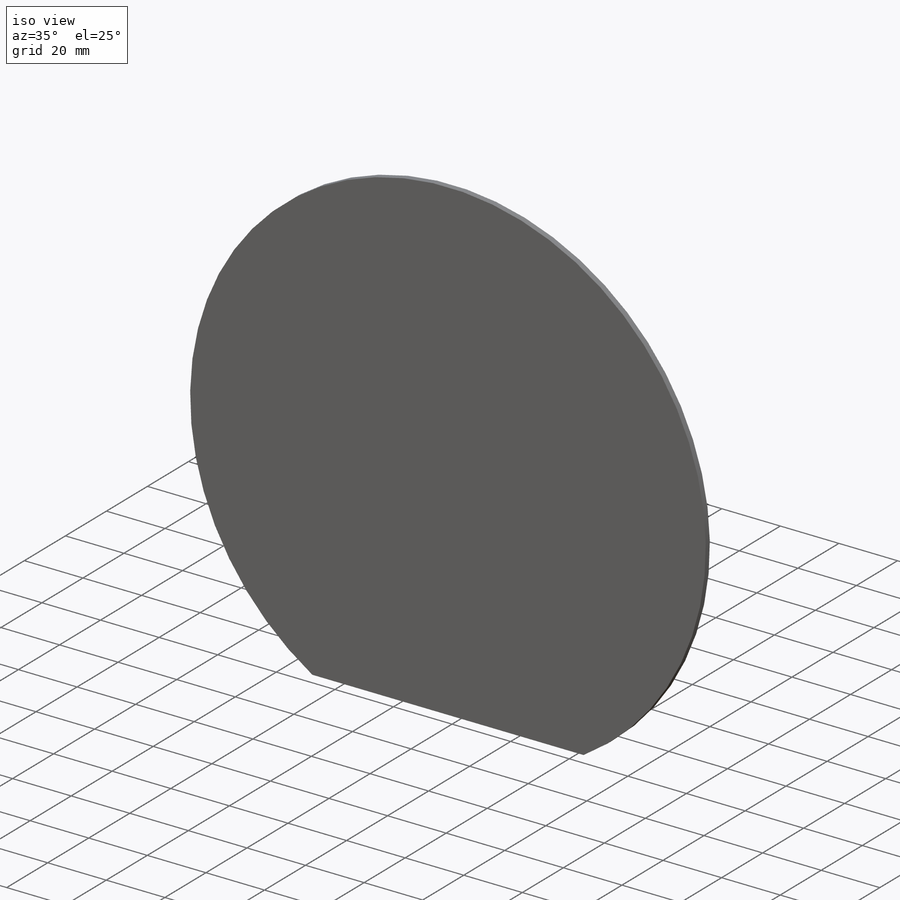
[diagram: iso view]
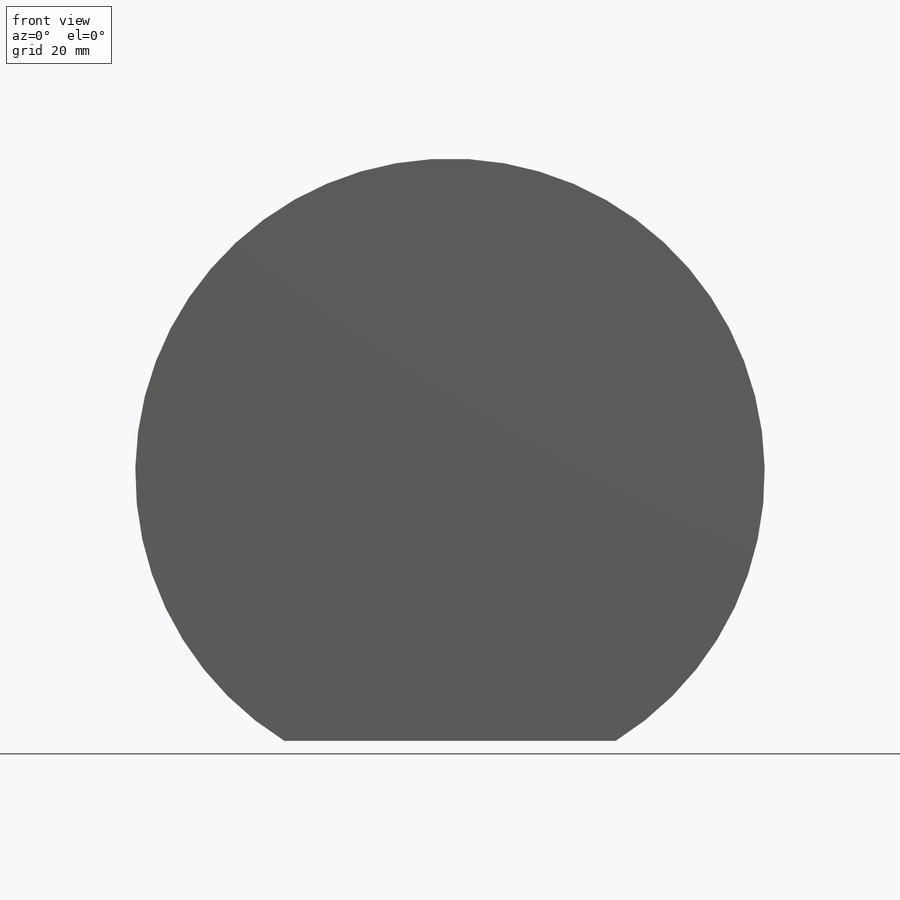
[diagram: front view]
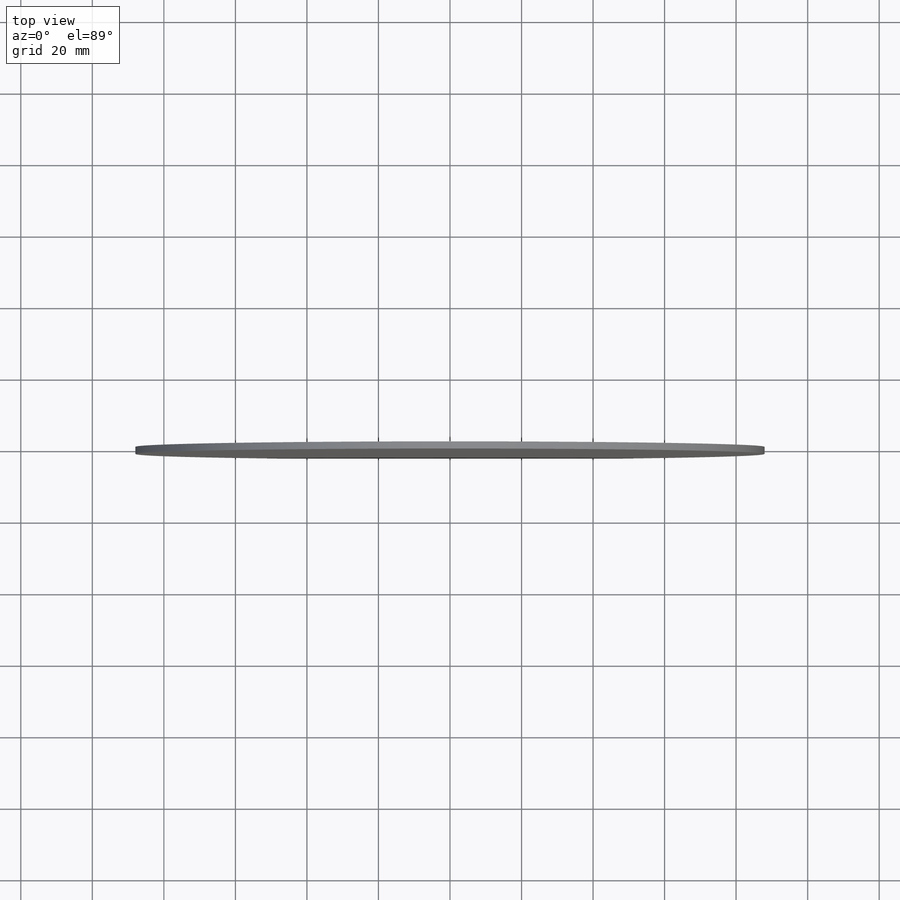
[diagram: top view]
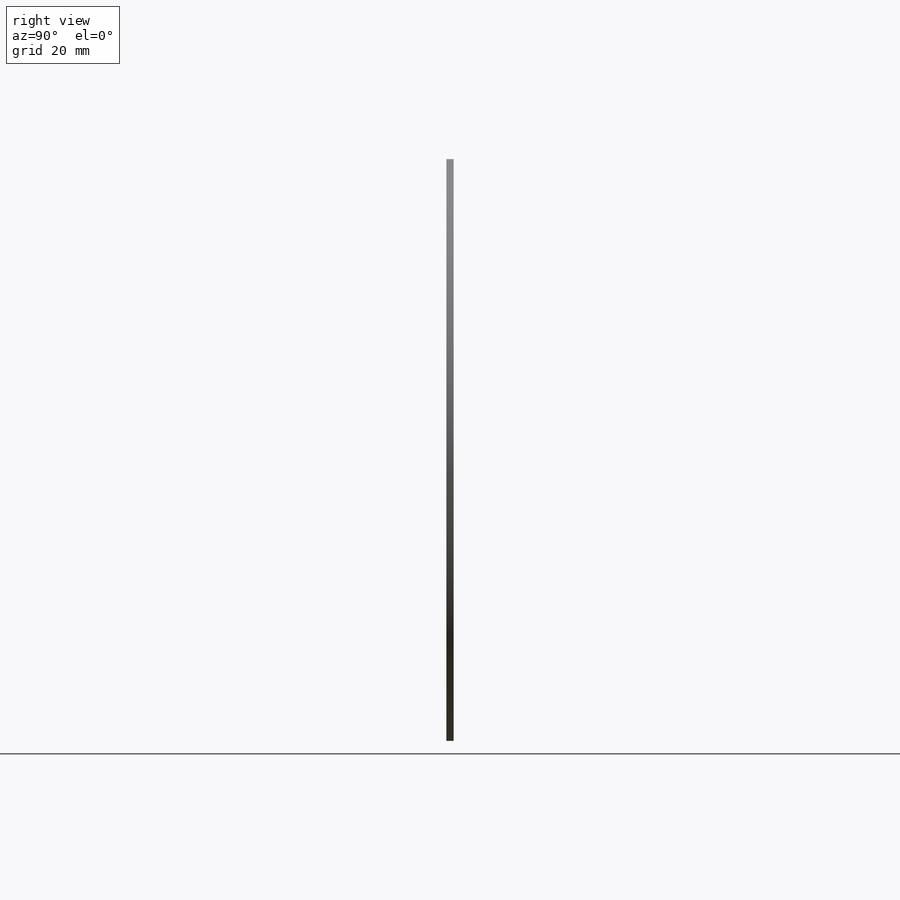
[diagram: right view]
SOLIDWORKS PART (.sldprt)
format: sldprt  version: not decoded by parser v0  size: 166,912 bytes
history: native  units: mm
features: plane x3, sketch x3, cut_extrude x2, chamfer x2, material x1, extrude x1 (+9 scaffold rows collapsed)
feature tree (21):
  scaffold x9  (default folders/planes/origin — collapsed)
  material  "Material <não especificado>"
  plane  "Plano frontal"
  plane  "Plano superior"
  plane  "Plano direito"
  sketch  "Esboço1"  dims[D1=88.0mm D3=180.0mm D2=100.0mm D4=100.0mm]
  extrude  "Ressalto-extrusão1"  Depth=2mm
  sketch  "Esboço3"  dims[D1=3.0mm D2=162.0mm]
  cut_extrude  "Corte-extrusão2"  [1 undecoded]
  chamfer  "Chanfro2"  Distance=1mm Angle=45deg
  sketch  "Esboço4"
  cut_extrude  "Corte-extrusão3"  [1 undecoded]
  chamfer  "Chanfro3"  Distance=1mm Angle=45deg
decode coverage: 5 of 8 modeling features carry decoded parameters
note: 2 parameter values undecoded
note: suppression state not decoded; provenance and decode notes live in map.json
